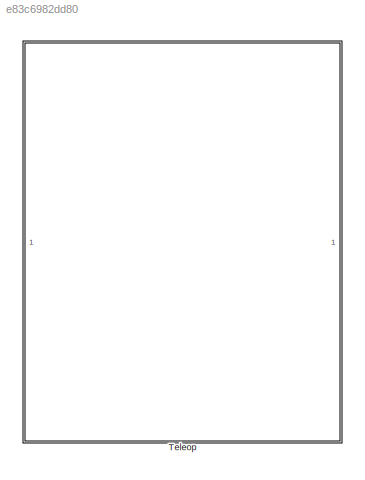
MODEL slx_e83c6982dd80
KIND library
CONFIG AbsTol = auto
CONFIG EnableMultiTasking = off
CONFIG FixedStep = auto
CONFIG MaxStep = auto
CONFIG MinStep = auto
CONFIG RelTol = 1e-3
CONFIG SampleTimeConstraint = Unconstrained
CONFIG SolverName = VariableStepAuto
CONFIG StartTime = 0.0
CONFIG StopTime = 10.0
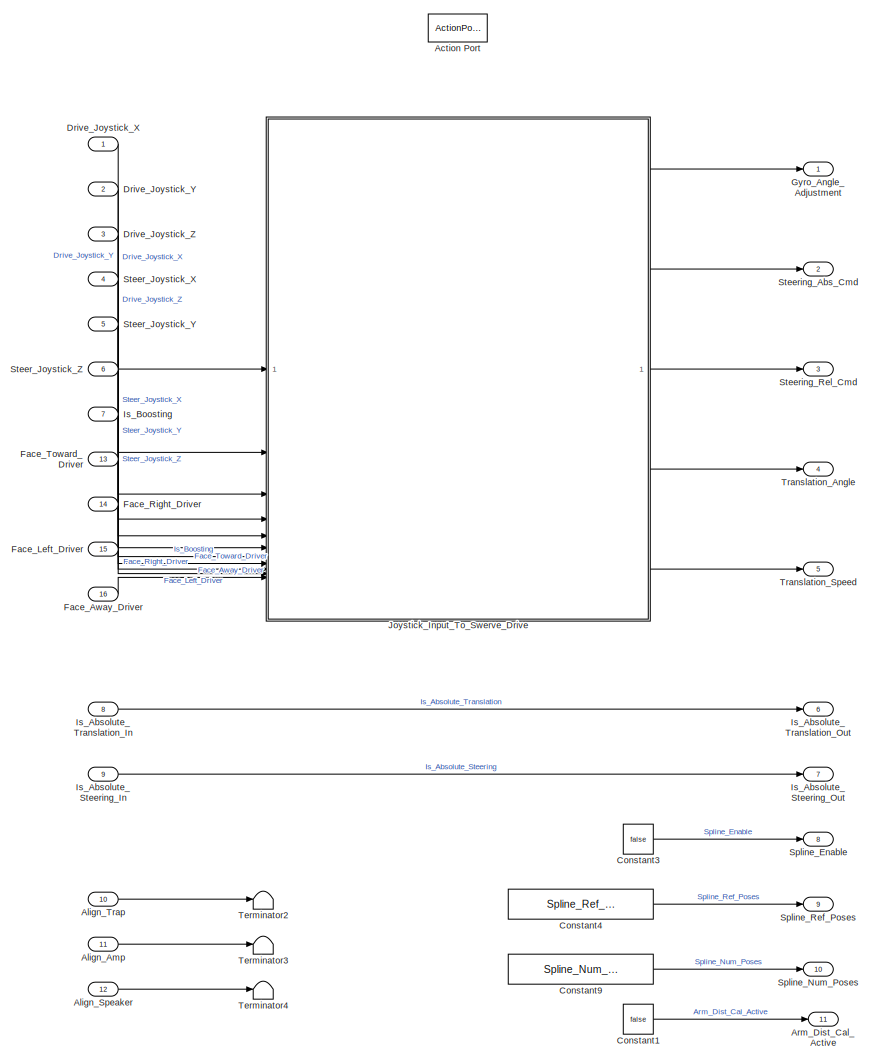
[diagram: Teleop - part 1/2, full width, middle band]
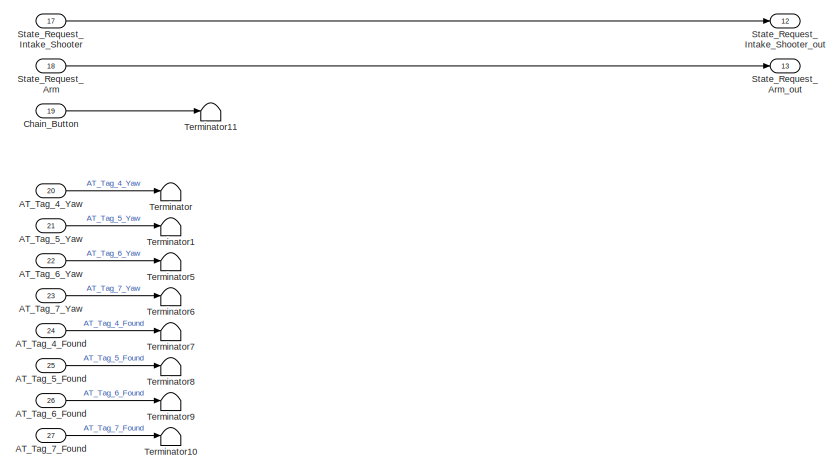
[diagram: Teleop - part 2/2, full width, bottom band]
BLOCK [SubSystem] Teleop
  TreatAsAtomicUnit = on
BLOCK [Inport] Teleop/AT_Tag_4_Found
  Port = 24
BLOCK [Inport] Teleop/AT_Tag_4_Yaw
  Port = 20
BLOCK [Inport] Teleop/AT_Tag_5_Found
  Port = 25
BLOCK [Inport] Teleop/AT_Tag_5_Yaw
  Port = 21
BLOCK [Inport] Teleop/AT_Tag_6_Found
  Port = 26
BLOCK [Inport] Teleop/AT_Tag_6_Yaw
  Port = 22
BLOCK [Inport] Teleop/AT_Tag_7_Found
  Port = 27
BLOCK [Inport] Teleop/AT_Tag_7_Yaw
  Port = 23
BLOCK [ActionPort] Teleop/Action Port
BLOCK [Inport] Teleop/Align_Amp
  Port = 11
BLOCK [Inport] Teleop/Align_Speaker
  Port = 12
BLOCK [Inport] Teleop/Align_Trap
  Port = 10
BLOCK [Outport] Teleop/Arm_Dist_Cal_Active
  Port = 11
BLOCK [Inport] Teleop/Chain_Button
  Port = 19
BLOCK [Constant] Teleop/Constant1
  OutDataTypeStr = boolean
  Value = false
BLOCK [Constant] Teleop/Constant3
  OutDataTypeStr = boolean
  Value = false
BLOCK [Constant] Teleop/Constant4
  Value = Spline_Ref_Poses_default
BLOCK [Constant] Teleop/Constant9
  OutDataTypeStr = double
  Value = Spline_Num_Poses_default
BLOCK [Inport] Teleop/Drive_Joystick_X
BLOCK [Inport] Teleop/Drive_Joystick_Y
  Port = 2
BLOCK [Inport] Teleop/Drive_Joystick_Z
  Port = 3
BLOCK [Inport] Teleop/Face_Away_Driver
  Port = 16
BLOCK [Inport] Teleop/Face_Left_Driver
  Port = 15
BLOCK [Inport] Teleop/Face_Right_Driver
  Port = 14
BLOCK [Inport] Teleop/Face_Toward_Driver
  Port = 13
BLOCK [Outport] Teleop/Gyro_Angle_Adjustment
BLOCK [Inport] Teleop/Is_Absolute_Steering_In
  Port = 9
BLOCK [Outport] Teleop/Is_Absolute_Steering_Out
  Port = 7
BLOCK [Inport] Teleop/Is_Absolute_Translation_In
  Port = 8
BLOCK [Outport] Teleop/Is_Absolute_Translation_Out
  Port = 6
BLOCK [Inport] Teleop/Is_Boosting
  Port = 7
BLOCK [SubSystem] Teleop/Joystick_Input_To_Swerve_Drive
  ReferencedSubsystem = Joystick_Input_To_Swerve_Drive_sub
BLOCK [Outport] Teleop/Spline_Enable
  Port = 8
BLOCK [Outport] Teleop/Spline_Num_Poses
  Port = 10
BLOCK [Outport] Teleop/Spline_Ref_Poses
  Port = 9
BLOCK [Inport] Teleop/State_Request_Arm
  Port = 18
BLOCK [Outport] Teleop/State_Request_Arm_out
  Port = 13
BLOCK [Inport] Teleop/State_Request_Intake_Shooter
  Port = 17
BLOCK [Outport] Teleop/State_Request_Intake_Shooter_out
  Port = 12
BLOCK [Inport] Teleop/Steer_Joystick_X
  Port = 4
BLOCK [Inport] Teleop/Steer_Joystick_Y
  Port = 5
BLOCK [Inport] Teleop/Steer_Joystick_Z
  Port = 6
BLOCK [Outport] Teleop/Steering_Abs_Cmd
  Port = 2
BLOCK [Outport] Teleop/Steering_Rel_Cmd
  Port = 3
BLOCK [Terminator] Teleop/Terminator
BLOCK [Terminator] Teleop/Terminator1
BLOCK [Terminator] Teleop/Terminator10
BLOCK [Terminator] Teleop/Terminator11
BLOCK [Terminator] Teleop/Terminator2
BLOCK [Terminator] Teleop/Terminator3
BLOCK [Terminator] Teleop/Terminator4
BLOCK [Terminator] Teleop/Terminator5
BLOCK [Terminator] Teleop/Terminator6
BLOCK [Terminator] Teleop/Terminator7
BLOCK [Terminator] Teleop/Terminator8
BLOCK [Terminator] Teleop/Terminator9
BLOCK [Outport] Teleop/Translation_Angle
  Port = 4
BLOCK [Outport] Teleop/Translation_Speed
  Port = 5
LINE Teleop/AT_Tag_4_Found:1 -> Teleop/Terminator7:1
LINE Teleop/AT_Tag_4_Yaw:1 -> Teleop/Terminator:1
LINE Teleop/AT_Tag_5_Found:1 -> Teleop/Terminator8:1
LINE Teleop/AT_Tag_5_Yaw:1 -> Teleop/Terminator1:1
LINE Teleop/AT_Tag_6_Found:1 -> Teleop/Terminator9:1
LINE Teleop/AT_Tag_6_Yaw:1 -> Teleop/Terminator5:1
LINE Teleop/AT_Tag_7_Found:1 -> Teleop/Terminator10:1
LINE Teleop/AT_Tag_7_Yaw:1 -> Teleop/Terminator6:1
LINE Teleop/Align_Amp:1 -> Teleop/Terminator3:1
LINE Teleop/Align_Speaker:1 -> Teleop/Terminator4:1
LINE Teleop/Align_Trap:1 -> Teleop/Terminator2:1
LINE Teleop/Chain_Button:1 -> Teleop/Terminator11:1
LINE Teleop/Constant1:1 -> Teleop/Arm_Dist_Cal_Active:1
LINE Teleop/Constant3:1 -> Teleop/Spline_Enable:1
LINE Teleop/Constant4:1 -> Teleop/Spline_Ref_Poses:1
LINE Teleop/Constant9:1 -> Teleop/Spline_Num_Poses:1
LINE Teleop/Drive_Joystick_X:1 -> Teleop/Joystick_Input_To_Swerve_Drive:1
LINE Teleop/Drive_Joystick_Y:1 -> Teleop/Joystick_Input_To_Swerve_Drive:2
LINE Teleop/Drive_Joystick_Z:1 -> Teleop/Joystick_Input_To_Swerve_Drive:3
LINE Teleop/Face_Away_Driver:1 -> Teleop/Joystick_Input_To_Swerve_Drive:11
LINE Teleop/Face_Left_Driver:1 -> Teleop/Joystick_Input_To_Swerve_Drive:10
LINE Teleop/Face_Right_Driver:1 -> Teleop/Joystick_Input_To_Swerve_Drive:9
LINE Teleop/Face_Toward_Driver:1 -> Teleop/Joystick_Input_To_Swerve_Drive:8
LINE Teleop/Is_Absolute_Steering_In:1 -> Teleop/Is_Absolute_Steering_Out:1
LINE Teleop/Is_Absolute_Translation_In:1 -> Teleop/Is_Absolute_Translation_Out:1
LINE Teleop/Is_Boosting:1 -> Teleop/Joystick_Input_To_Swerve_Drive:7
LINE Teleop/Joystick_Input_To_Swerve_Drive:1 -> Teleop/Gyro_Angle_Adjustment:1
LINE Teleop/Joystick_Input_To_Swerve_Drive:2 -> Teleop/Steering_Abs_Cmd:1
LINE Teleop/Joystick_Input_To_Swerve_Drive:3 -> Teleop/Steering_Rel_Cmd:1
LINE Teleop/Joystick_Input_To_Swerve_Drive:4 -> Teleop/Translation_Angle:1
LINE Teleop/Joystick_Input_To_Swerve_Drive:5 -> Teleop/Translation_Speed:1
LINE Teleop/State_Request_Arm:1 -> Teleop/State_Request_Arm_out:1
LINE Teleop/State_Request_Intake_Shooter:1 -> Teleop/State_Request_Intake_Shooter_out:1
LINE Teleop/Steer_Joystick_X:1 -> Teleop/Joystick_Input_To_Swerve_Drive:4
LINE Teleop/Steer_Joystick_Y:1 -> Teleop/Joystick_Input_To_Swerve_Drive:5
LINE Teleop/Steer_Joystick_Z:1 -> Teleop/Joystick_Input_To_Swerve_Drive:6
